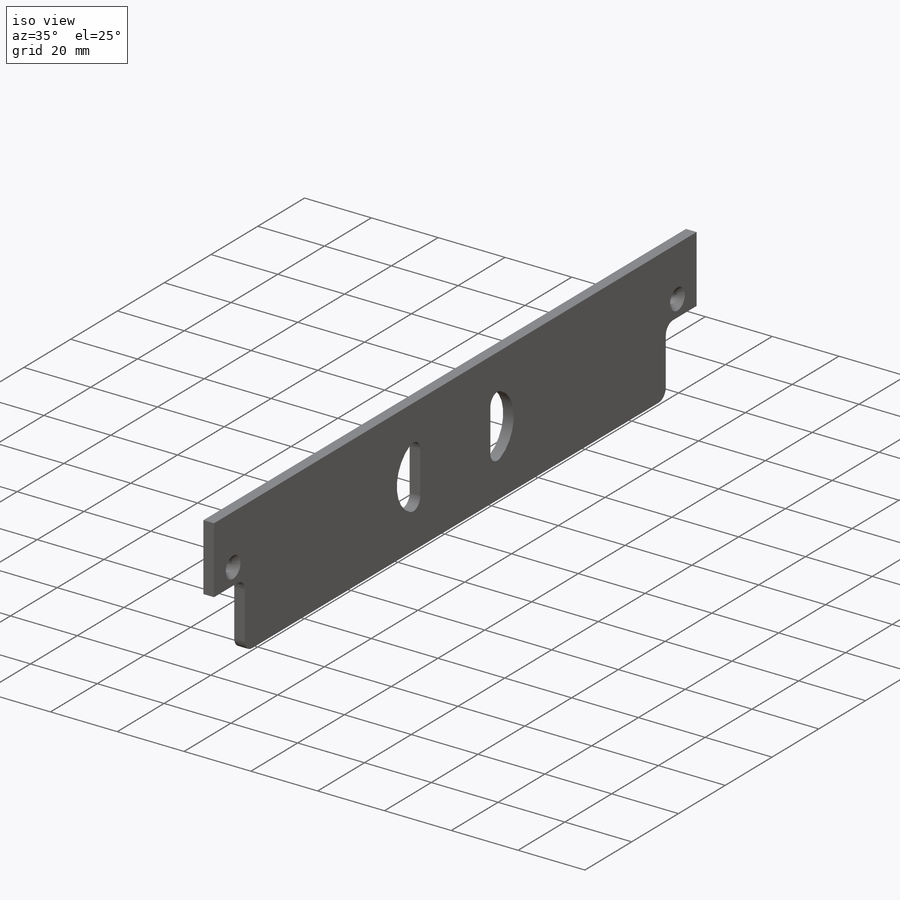
[diagram: iso view]
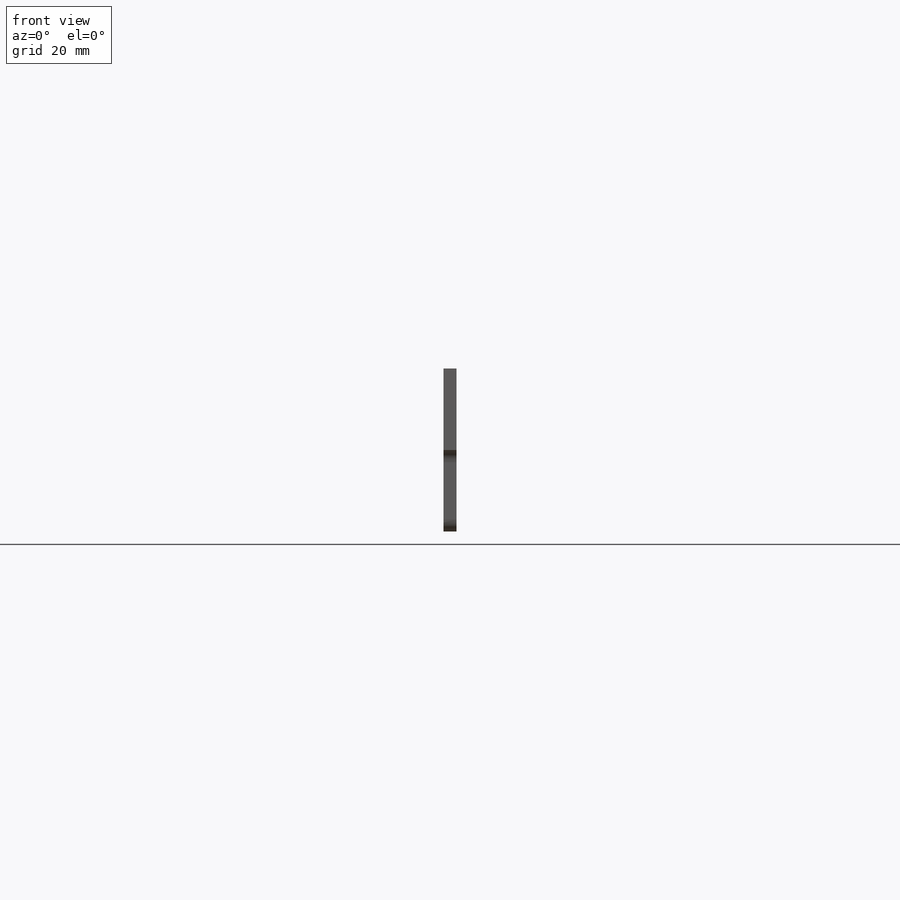
[diagram: front view]
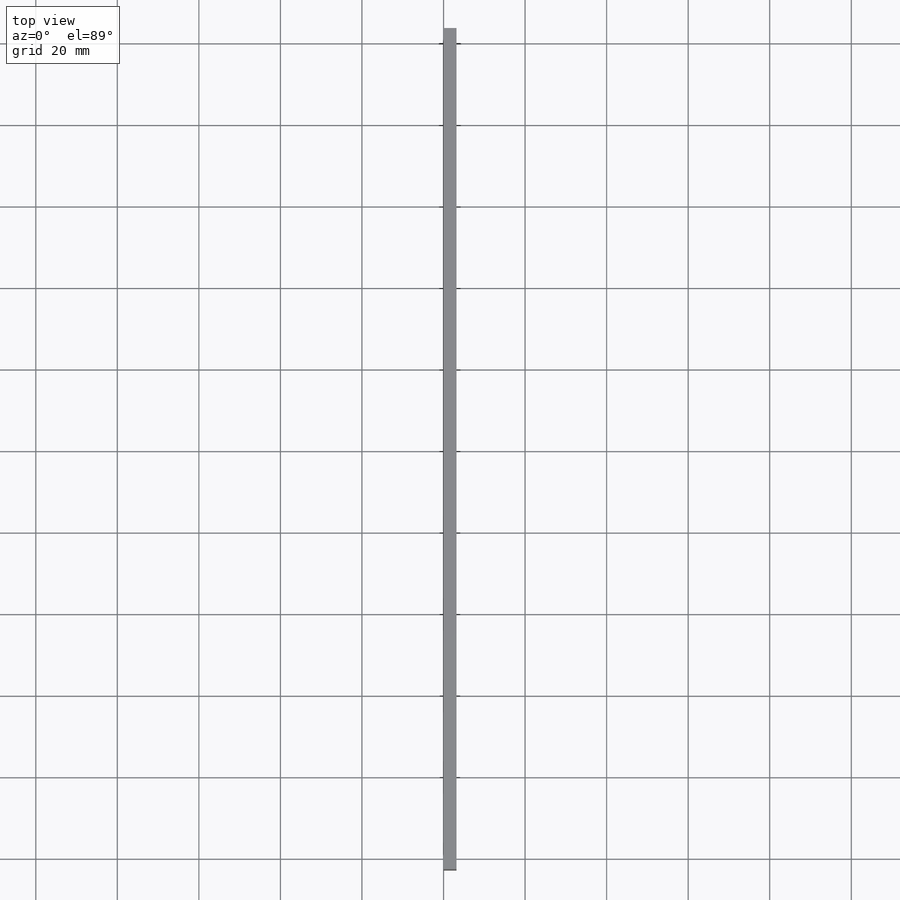
[diagram: top view]
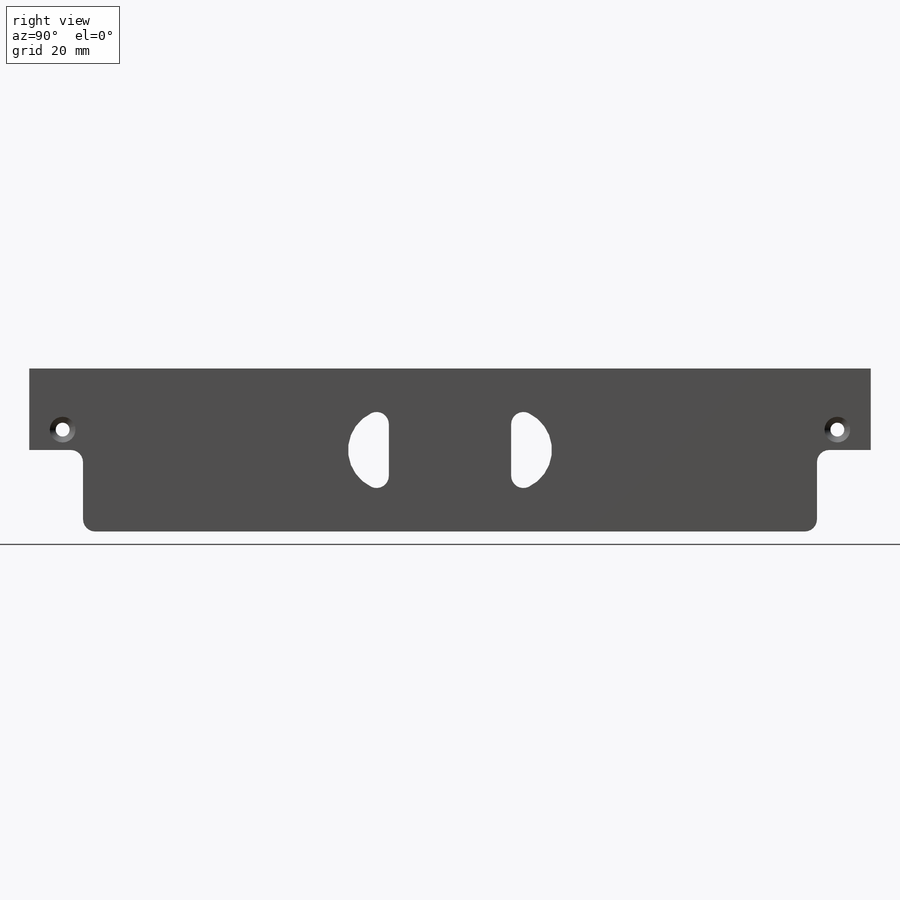
[diagram: right view]
SOLIDWORKS PART (.sldprt)
format: sldprt  version: not decoded by parser v0  size: 237,568 bytes
history: native  units: mm
features: sketch x4, mirror x2, material x1, extrude x1, hole x1, cut_extrude x1, fillet x1 (+11 scaffold rows collapsed)
feature tree (22):
  scaffold x11  (default folders/planes/origin — collapsed)
  material  "Garolite (G-10/FR4)"
  sketch  "Sketch1"  dims[c1.D7=3.0mm c1.D1=300.0mm c1.D2=110.0mm c1.D3=13.0mm c1.D4=13.0mm c1.D5=90.0mm c2.D1=206.35mm c2.D2=44.0mm c2.D3=3.175mm c2.D4=44.0mm c2.D5=3.175mm c2.D6=10.0mm c2.D7=~20.252474mm c3.D2=13.175mm c3.D1=40.0mm c4.D2=206.35mm c4.D3=13.175mm c4.D4=20.0mm]
  extrude  "Boss-Extrude1"  Depth=3.175mm
  hole  "CSK for M3 Flat Head Machine Screw1"  Diameter=3.4mm Depth=3.175mm
  sketch  "Sketch3"  dims[c1.D11=25.0mm c1.D1=8.175mm c1.D2=28.175mm c1.D3=10.0mm c1.D4=30.0mm c1.D5=28.175mm c1.D6=10.0mm c1.D7=30.0mm c1.D8=55.35mm c1.D9=30.175mm c1.D10=~37.08232mm c2.D10=90.0deg c3.D10=30.0mm c3.D12=12.5mm c4.D12=120.0deg c4.D13=~11.43809mm c5.D13=120.0deg c5.D4=8.175mm c5.D5=5.0mm c5.D1=5.0mm c5.D2=8.175mm]
  sketch  "Sketch2"  dims[hole-wizard template sketch: 59 standard entries collapsed; hole parameters above]
  mirror  "Mirror1"
  sketch  "Sketch4"  dims[D1=20.0mm D2=10.0mm D3=15.0mm]
  cut_extrude  "Cut-Extrude1"  [1 undecoded]
  fillet  "Fillet1"  Radius=3mm
  mirror  "Mirror3"
decode coverage: 7 of 10 modeling features carry decoded parameters
note: ~ marks probable driven/reference dimensions
note: 1 parameter value undecoded
note: suppression state not decoded; provenance and decode notes live in map.json
